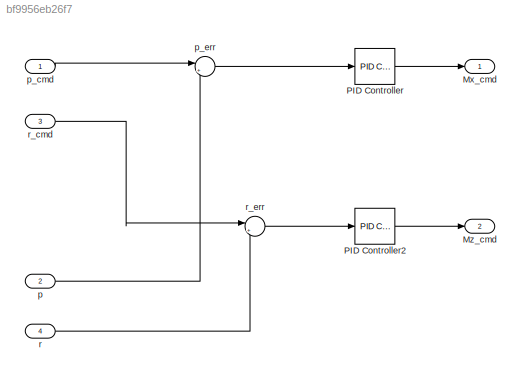
MODEL slx_bf9956eb26f7
KIND model
CONFIG AbsTol = auto
CONFIG EnableMultiTasking = off
CONFIG FixedStep = auto
CONFIG MaxStep = auto
CONFIG MinStep = auto
CONFIG RelTol = 1e-3
CONFIG SampleTimeConstraint = Unconstrained
CONFIG SolverName = VariableStepAuto
CONFIG StartTime = 0.0
CONFIG StopTime = 10.0
BLOCK [Outport] Mx_cmd
BLOCK [Outport] Mz_cmd
  Port = 2
BLOCK [Reference] PID Controller  REF=slpidlib/PID Controller
  LibrarySourceBlock = simulink/Continuous/PID Controller
  SourceBlock = slpidlib/PID Controller
  SourceType = PID 1dof
BLOCK [Reference] PID Controller2  REF=slpidlib/PID Controller
  LibrarySourceBlock = simulink/Continuous/PID Controller
  SourceBlock = slpidlib/PID Controller
  SourceType = PID 1dof
BLOCK [Inport] p
  Port = 2
BLOCK [Inport] p_cmd
BLOCK [Sum] p_err
  Inputs = |+-
BLOCK [Inport] r
  Port = 4
BLOCK [Inport] r_cmd
  Port = 3
BLOCK [Sum] r_err
  Inputs = |+-
LINE PID Controller2:1 -> Mz_cmd:1
LINE PID Controller:1 -> Mx_cmd:1
LINE p:1 -> p_err:2
LINE p_cmd:1 -> p_err:1
LINE p_err:1 -> PID Controller:1
LINE r:1 -> r_err:2
LINE r_cmd:1 -> r_err:1
LINE r_err:1 -> PID Controller2:1
